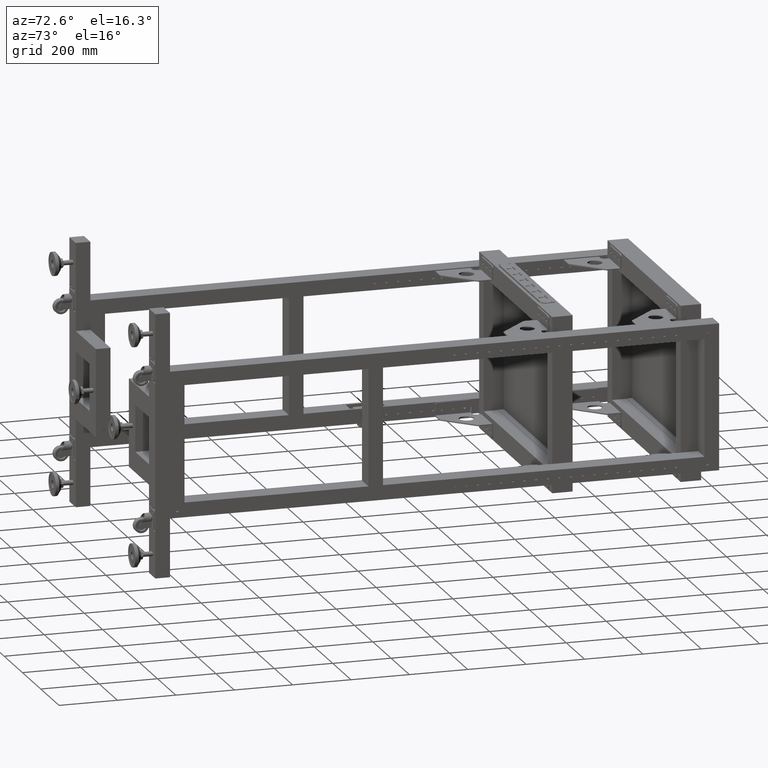
[diagram: clean part render]
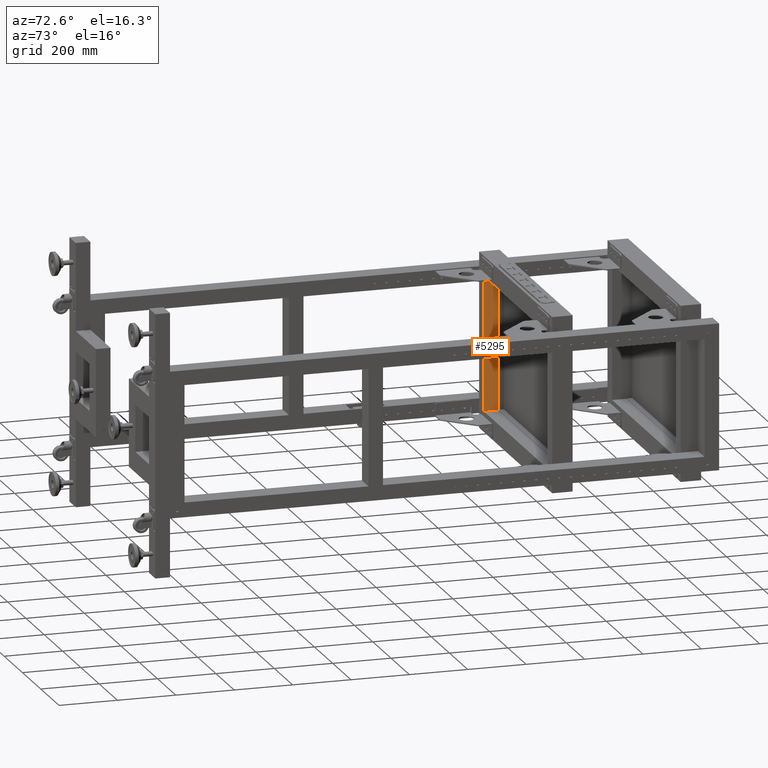
[diagram: same view with one face highlighted and labeled with its STEP entity id]
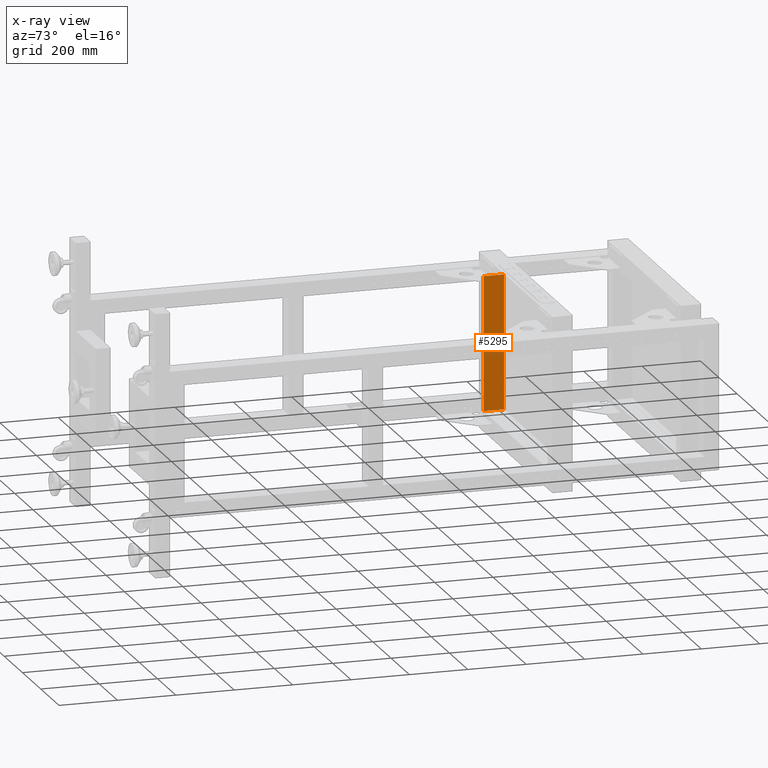
[diagram: x-ray of the same camera — body ghosted, the highlighted face saturated]
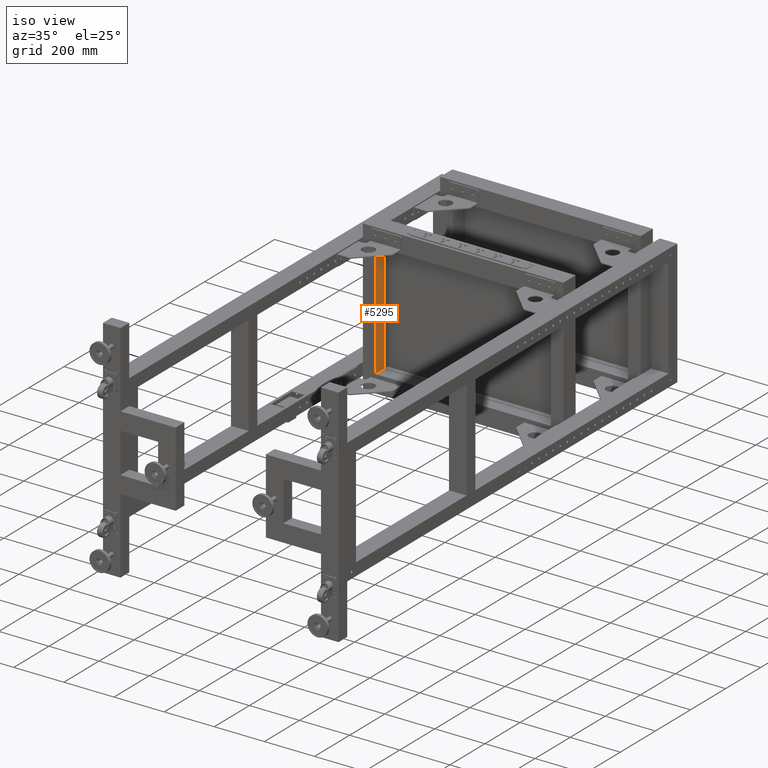
[diagram: same view with one face highlighted and labeled with its STEP entity id]
A machine part, auxiliary view. The second image highlights one B-rep face of the part: STEP entity #5295.
The next image is the same camera in x-ray: the body ghosted, the highlighted face saturated — about 16% of this face is hidden behind the body in this view.
A second angle (iso view) of the same face is appended — the face is thin or edge-on in the first view.
In plain terms, the highlighted planar face has unit normal (-1, -0, -0).
Its self-contained STEP definition (entity closure, byte-faithful):
#906 = VECTOR ( 'NONE', #40929, 1000.000000000000000 ) ;
#4954 = EDGE_CURVE ( 'NONE', #30238, #9198, #65394, .T. ) ;
#5295 = ADVANCED_FACE ( 'NONE', ( #8972 ), #19608, .F. ) ;
#5428 = ORIENTED_EDGE ( 'NONE', *, *, #11081, .F. ) ;
#6238 = VERTEX_POINT ( 'NONE', #32259 ) ;
#6700 = ORIENTED_EDGE ( 'NONE', *, *, #45145, .T. ) ;
#8972 = FACE_OUTER_BOUND ( 'NONE', #64953, .T. ) ;
#9198 = VERTEX_POINT ( 'NONE', #16840 ) ;
#11081 = EDGE_CURVE ( 'NONE', #6238, #35445, #12399, .T. ) ;
#12399 = LINE ( 'NONE', #28163, #64740 ) ;
#14460 = ORIENTED_EDGE ( 'NONE', *, *, #4954, .T. ) ;
#16598 = LINE ( 'NONE', #48129, #26612 ) ;
#16840 = CARTESIAN_POINT ( 'NONE',  ( -1218.172487437185964, 486.9410804020109822, 229.9999999999998863 ) ) ;
#17378 = AXIS2_PLACEMENT_3D ( 'NONE', #61774, #66237, #50454 ) ;
#19608 = PLANE ( 'NONE',  #17378 ) ;
#20764 = EDGE_CURVE ( 'NONE', #35445, #9198, #16598, .T. ) ;
#24558 = CARTESIAN_POINT ( 'NONE',  ( -1218.172487437186192, 556.9410804020125170, -229.9999999999998863 ) ) ;
#26612 = VECTOR ( 'NONE', #43315, 1000.000000000000000 ) ;
#28163 = CARTESIAN_POINT ( 'NONE',  ( -1218.172487437185964, 486.9410804020124033, -230.0000000000001137 ) ) ;
#30238 = VERTEX_POINT ( 'NONE', #56365 ) ;
#32259 = CARTESIAN_POINT ( 'NONE',  ( -1218.172487437186192, 556.9410804020125170, -229.9999999999998863 ) ) ;
#32423 = CARTESIAN_POINT ( 'NONE',  ( -1218.172487437185964, 486.9410804020124033, -230.0000000000001137 ) ) ;
#34693 = ORIENTED_EDGE ( 'NONE', *, *, #20764, .F. ) ;
#35445 = VERTEX_POINT ( 'NONE', #32423 ) ;
#40669 = DIRECTION ( 'NONE',  ( 0.000000000000000000, -2.999999999999999839E-15, 1.000000000000000000 ) ) ;
#40929 = DIRECTION ( 'NONE',  ( 1.000000000000000078E-15, -1.000000000000000000, -2.999999999999999839E-15 ) ) ;
#43315 = DIRECTION ( 'NONE',  ( 0.000000000000000000, -2.999999999999999839E-15, 1.000000000000000000 ) ) ;
#45145 = EDGE_CURVE ( 'NONE', #6238, #30238, #55090, .T. ) ;
#48129 = CARTESIAN_POINT ( 'NONE',  ( -1218.172487437185964, 486.9410804020124033, -230.0000000000001137 ) ) ;
#49073 = DIRECTION ( 'NONE',  ( 1.000000000000000078E-15, -1.000000000000000000, -2.999999999999999839E-15 ) ) ;
#50454 = DIRECTION ( 'NONE',  ( 0.000000000000000000, -2.999999999999999839E-15, 1.000000000000000000 ) ) ;
#52871 = VECTOR ( 'NONE', #40669, 1000.000000000000000 ) ;
#55090 = LINE ( 'NONE', #24558, #52871 ) ;
#56365 = CARTESIAN_POINT ( 'NONE',  ( -1218.172487437186192, 556.9410804020110390, 230.0000000000001137 ) ) ;
#60255 = CARTESIAN_POINT ( 'NONE',  ( -1218.172487437185964, 486.9410804020109822, 229.9999999999998863 ) ) ;
#61774 = CARTESIAN_POINT ( 'NONE',  ( -1218.172487437185964, 486.9410804020124033, -230.0000000000001137 ) ) ;
#64740 = VECTOR ( 'NONE', #49073, 1000.000000000000000 ) ;
#64953 = EDGE_LOOP ( 'NONE', ( #14460, #34693, #5428, #6700 ) ) ;
#65394 = LINE ( 'NONE', #60255, #906 ) ;
#66237 = DIRECTION ( 'NONE',  ( -1.000000000000000000, -1.000000000000000078E-15, -2.999999999999999900E-30 ) ) ;